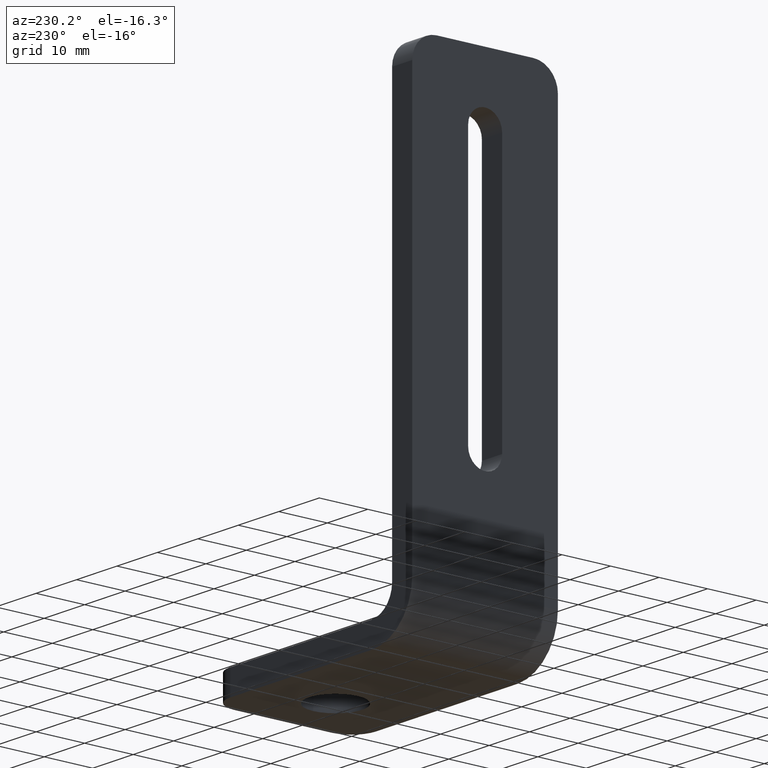
[diagram: clean part render]
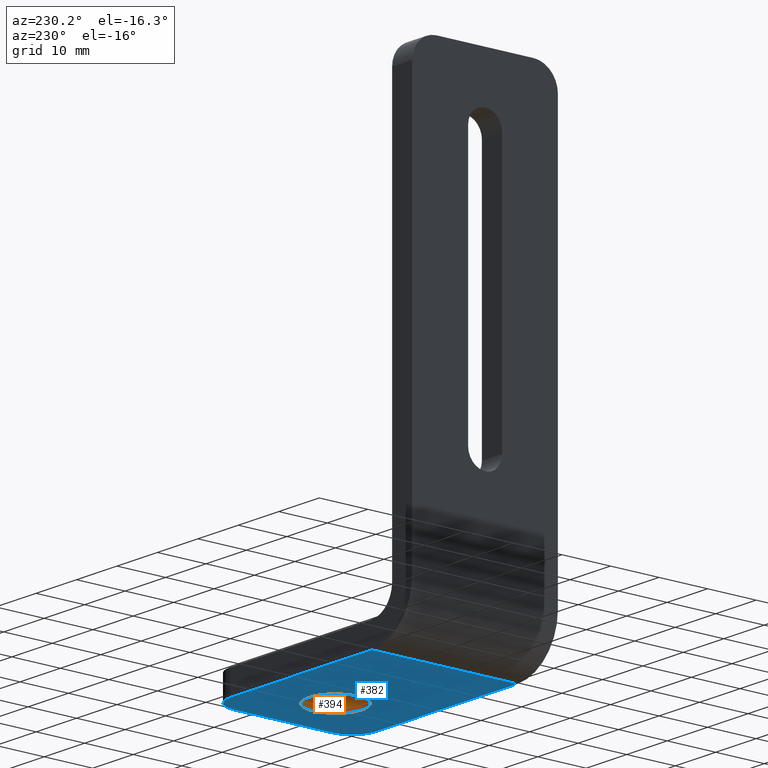
[diagram: same view with the hole feature highlighted: cylindrical wall and planar end face, labeled with their STEP entity ids]
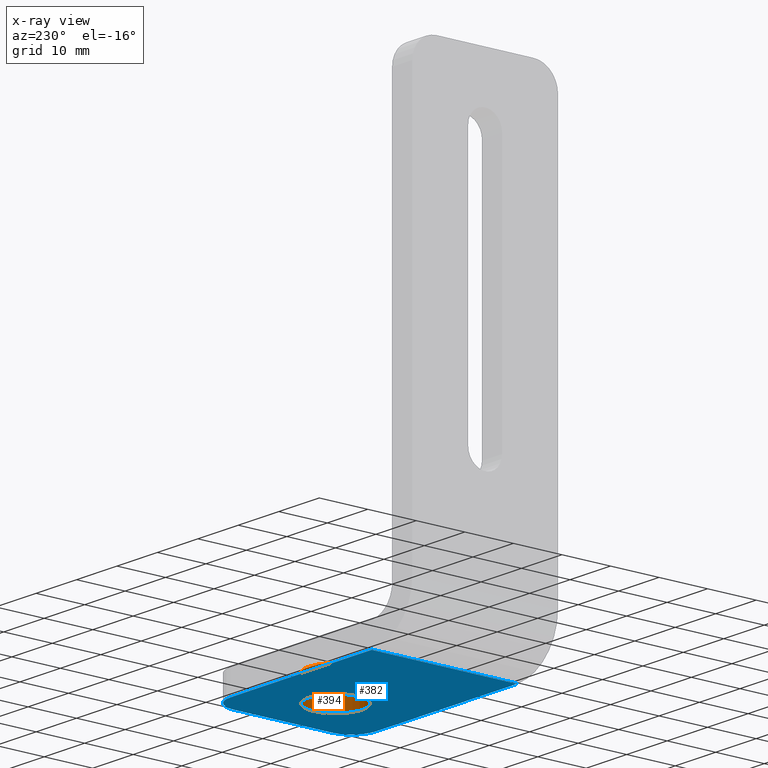
[diagram: x-ray of the same camera — body ghosted, the hole faces saturated]
A machine part, auxiliary view. The highlighted faces form one hole feature of diameter 11 mm: the cylindrical wall (entity #394, orange) and its adjacent planar end face (entity #382, blue) — they share a circular edge in the B-rep.
The next image is the same camera in x-ray (body ghosted, the hole faces saturated) — the bore reads through the body.
Wall:
#17=FACE_BOUND('',#74,.T.);
#48=FACE_OUTER_BOUND('',#73,.T.);
#73=EDGE_LOOP('',(#328));
#74=EDGE_LOOP('',(#329));
#160=CIRCLE('',#411,5.5);
#170=CIRCLE('',#433,5.5);
#184=VERTEX_POINT('',#590);
#206=VERTEX_POINT('',#656);
#220=EDGE_CURVE('',#184,#184,#160,.T.);
#252=EDGE_CURVE('',#206,#206,#170,.T.);
#328=ORIENTED_EDGE('',*,*,#220,.F.);
#329=ORIENTED_EDGE('',*,*,#252,.F.);
#377=CYLINDRICAL_SURFACE('',#432,5.5);
#394=ADVANCED_FACE('',(#48,#17),#377,.F.);
#411=AXIS2_PLACEMENT_3D('',#591,#468,#469);
#432=AXIS2_PLACEMENT_3D('',#655,#532,#533);
#433=AXIS2_PLACEMENT_3D('',#657,#534,#535);
#468=DIRECTION('center_axis',(0.,0.,1.));
#469=DIRECTION('ref_axis',(1.,0.,0.));
#532=DIRECTION('center_axis',(0.,0.,1.));
#533=DIRECTION('ref_axis',(1.,0.,0.));
#534=DIRECTION('center_axis',(0.,0.,-1.));
#535=DIRECTION('ref_axis',(1.,0.,0.));
#590=CARTESIAN_POINT('',(6.5,-6.73555739531044E-16,0.));
#591=CARTESIAN_POINT('Origin',(12.,0.,0.));
#655=CARTESIAN_POINT('Origin',(12.,0.,-110.758369027902));
#656=CARTESIAN_POINT('',(17.5,0.,5.));
#657=CARTESIAN_POINT('Origin',(12.,0.,5.));
End face:
#15=FACE_BOUND('',#60,.T.);
#21=PLANE('',#409);
#36=FACE_OUTER_BOUND('',#59,.T.);
#59=EDGE_LOOP('',(#271,#272,#273,#274,#275,#276));
#60=EDGE_LOOP('',(#277));
#87=LINE('',#578,#123);
#90=LINE('',#584,#126);
#91=LINE('',#586,#127);
#92=LINE('',#588,#128);
#123=VECTOR('',#458,20.);
#126=VECTOR('',#463,35.);
#127=VECTOR('',#464,30.);
#128=VECTOR('',#465,35.);
#158=CIRCLE('',#407,5.);
#159=CIRCLE('',#410,5.);
#160=CIRCLE('',#411,5.5);
#177=VERTEX_POINT('',#571);
#178=VERTEX_POINT('',#573);
#179=VERTEX_POINT('',#577);
#181=VERTEX_POINT('',#583);
#182=VERTEX_POINT('',#585);
#183=VERTEX_POINT('',#587);
#184=VERTEX_POINT('',#590);
#211=EDGE_CURVE('',#177,#178,#158,.T.);
#213=EDGE_CURVE('',#179,#178,#87,.T.);
#216=EDGE_CURVE('',#177,#181,#90,.T.);
#217=EDGE_CURVE('',#181,#182,#91,.T.);
#218=EDGE_CURVE('',#182,#183,#92,.T.);
#219=EDGE_CURVE('',#179,#183,#159,.T.);
#220=EDGE_CURVE('',#184,#184,#160,.T.);
#271=ORIENTED_EDGE('',*,*,#211,.F.);
#272=ORIENTED_EDGE('',*,*,#216,.T.);
#273=ORIENTED_EDGE('',*,*,#217,.T.);
#274=ORIENTED_EDGE('',*,*,#218,.T.);
#275=ORIENTED_EDGE('',*,*,#219,.F.);
#276=ORIENTED_EDGE('',*,*,#213,.T.);
#277=ORIENTED_EDGE('',*,*,#220,.T.);
#382=ADVANCED_FACE('',(#36,#15),#21,.F.);
#407=AXIS2_PLACEMENT_3D('',#574,#453,#454);
#409=AXIS2_PLACEMENT_3D('',#582,#461,#462);
#410=AXIS2_PLACEMENT_3D('',#589,#466,#467);
#411=AXIS2_PLACEMENT_3D('',#591,#468,#469);
#453=DIRECTION('center_axis',(0.,0.,1.));
#454=DIRECTION('ref_axis',(0.707106781186547,-0.707106781186547,0.));
#458=DIRECTION('',(0.,-1.,0.));
#461=DIRECTION('center_axis',(0.,0.,1.));
#462=DIRECTION('ref_axis',(1.,0.,0.));
#463=DIRECTION('',(-1.,0.,0.));
#464=DIRECTION('',(0.,1.,0.));
#465=DIRECTION('',(1.,0.,0.));
#466=DIRECTION('center_axis',(0.,0.,1.));
#467=DIRECTION('ref_axis',(0.707106781186547,0.707106781186547,0.));
#468=DIRECTION('center_axis',(0.,0.,1.));
#469=DIRECTION('ref_axis',(1.,0.,0.));
#571=CARTESIAN_POINT('',(20.,-15.,0.));
#573=CARTESIAN_POINT('',(25.,-10.,0.));
#574=CARTESIAN_POINT('Origin',(20.,-10.,0.));
#577=CARTESIAN_POINT('',(25.,10.,0.));
#578=CARTESIAN_POINT('',(25.,15.,0.));
#582=CARTESIAN_POINT('Origin',(0.,7.56970244062607E-17,0.));
#583=CARTESIAN_POINT('',(-15.,-15.,0.));
#584=CARTESIAN_POINT('',(25.,-15.,0.));
#585=CARTESIAN_POINT('',(-15.,15.,0.));
#586=CARTESIAN_POINT('',(-15.,-7.5,0.));
#587=CARTESIAN_POINT('',(20.,15.,0.));
#588=CARTESIAN_POINT('',(-25.,15.,0.));
#589=CARTESIAN_POINT('Origin',(20.,10.,0.));
#590=CARTESIAN_POINT('',(6.5,-6.73555739531044E-16,0.));
#591=CARTESIAN_POINT('Origin',(12.,0.,0.));